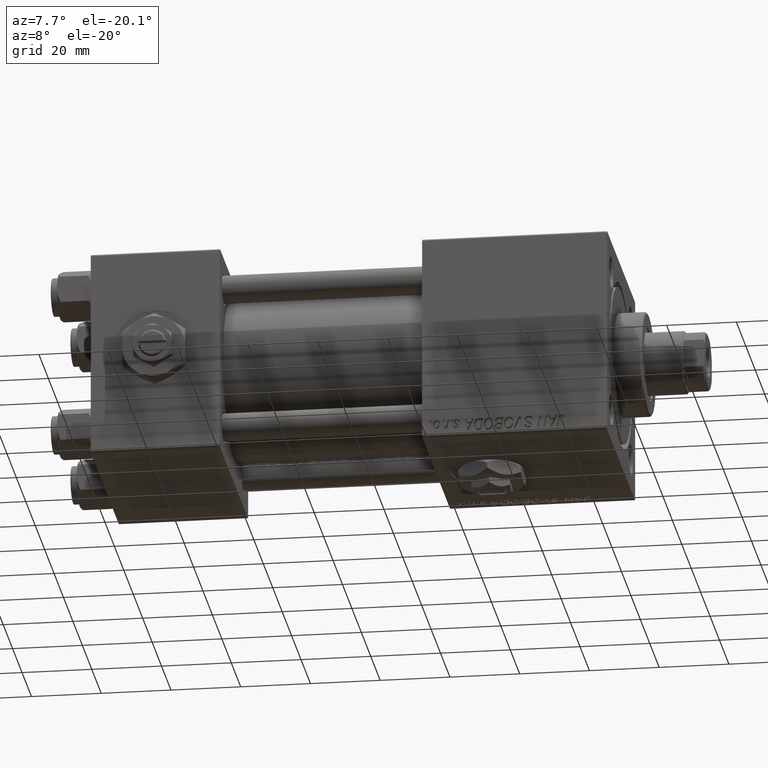
[diagram: clean part render]
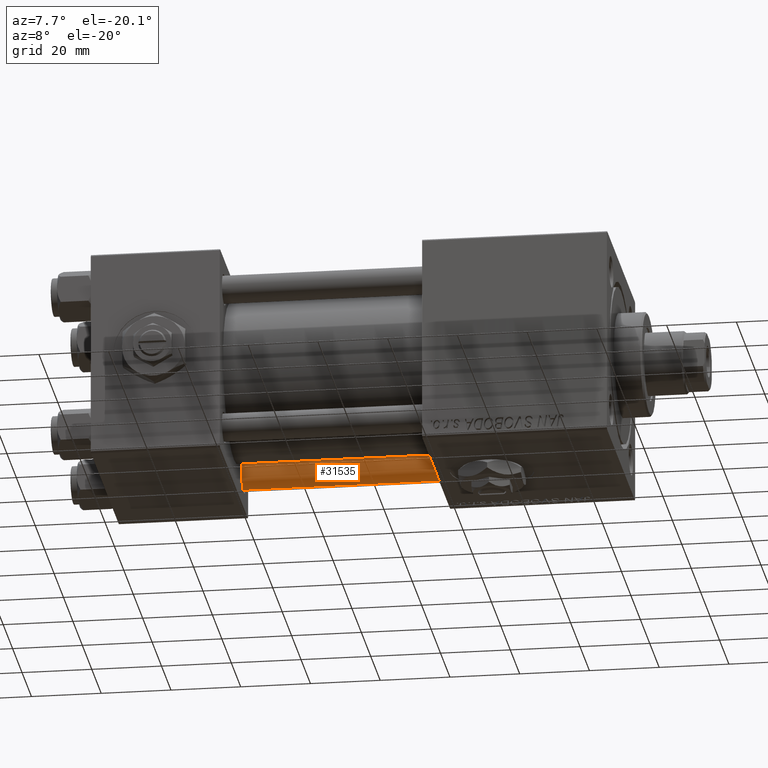
[diagram: same view with one face highlighted and labeled with its STEP entity id]
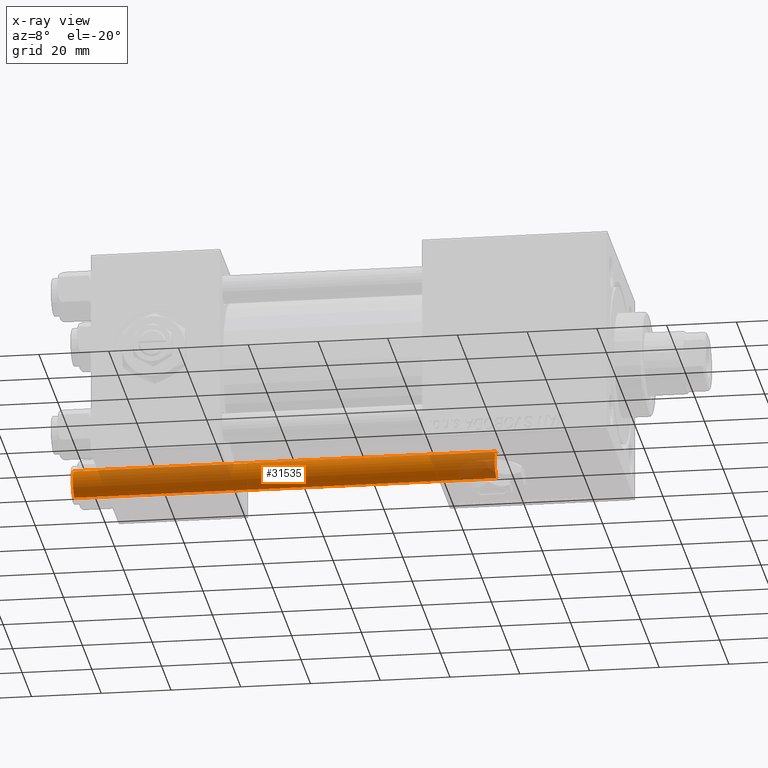
[diagram: x-ray of the same camera — body ghosted, the highlighted face saturated]
A machine part, auxiliary view. The second image highlights one B-rep face of the part: STEP entity #31535.
The next image is the same camera in x-ray: the body ghosted, the highlighted face saturated — about 30% of this face is hidden behind the body in this view.
In plain terms, the highlighted cylindrical surface (edge-blend (fillet) strip) has radius 4 mm, axis along (1, -0, 0).
Its self-contained STEP definition (entity closure, byte-faithful):
#565 = VECTOR ( 'NONE', #48846, 1000.000000000000000 ) ;
#788 = DIRECTION ( 'NONE',  ( 1.000000000000000000, 0.000000000000000000, 0.000000000000000000 ) ) ;
#1296 = LINE ( 'NONE', #44345, #565 ) ;
#3832 = AXIS2_PLACEMENT_3D ( 'NONE', #27839, #24910, #48391 ) ;
#4839 = CYLINDRICAL_SURFACE ( 'NONE', #3832, 4.000000000000000000 ) ;
#6329 = EDGE_CURVE ( 'NONE', #16325, #23032, #8172, .T. ) ;
#8172 = CIRCLE ( 'NONE', #44416, 4.000000000000000000 ) ;
#9447 = ORIENTED_EDGE ( 'NONE', *, *, #6329, .T. ) ;
#11332 = EDGE_CURVE ( 'NONE', #18484, #17122, #26802, .T. ) ;
#13706 = DIRECTION ( 'NONE',  ( -0.000000000000000000, -0.000000000000000000, -1.000000000000000000 ) ) ;
#14529 = ORIENTED_EDGE ( 'NONE', *, *, #11332, .T. ) ;
#16325 = VERTEX_POINT ( 'NONE', #17275 ) ;
#16988 = DIRECTION ( 'NONE',  ( 1.000000000000000000, 0.000000000000000000, 0.000000000000000000 ) ) ;
#17122 = VERTEX_POINT ( 'NONE', #27090 ) ;
#17275 = CARTESIAN_POINT ( 'NONE',  ( 4.000000000000000000, 4.898587196589411843E-16, 121.5000000000000426 ) ) ;
#18484 = VERTEX_POINT ( 'NONE', #46029 ) ;
#20403 = CARTESIAN_POINT ( 'NONE',  ( -4.000000000000000000, 0.000000000000000000, 121.5000000000000426 ) ) ;
#23032 = VERTEX_POINT ( 'NONE', #20403 ) ;
#24910 = DIRECTION ( 'NONE',  ( -0.000000000000000000, -0.000000000000000000, -1.000000000000000000 ) ) ;
#26802 = CIRCLE ( 'NONE', #32696, 4.000000000000000000 ) ;
#27090 = CARTESIAN_POINT ( 'NONE',  ( 4.000000000000000000, 4.898587196589411843E-16, 0.5000000000000559552 ) ) ;
#27839 = CARTESIAN_POINT ( 'NONE',  ( 0.000000000000000000, 0.000000000000000000, 122.0000000000000000 ) ) ;
#28672 = ORIENTED_EDGE ( 'NONE', *, *, #51210, .T. ) ;
#29044 = CARTESIAN_POINT ( 'NONE',  ( 0.000000000000000000, 0.000000000000000000, 121.5000000000000426 ) ) ;
#31535 = ADVANCED_FACE ( 'NONE', ( #37061 ), #4839, .T. ) ;
#32696 = AXIS2_PLACEMENT_3D ( 'NONE', #44955, #33333, #16988 ) ;
#33333 = DIRECTION ( 'NONE',  ( -0.000000000000000000, -0.000000000000000000, 1.000000000000000000 ) ) ;
#35537 = EDGE_CURVE ( 'NONE', #16325, #17122, #1296, .T. ) ;
#37061 = FACE_OUTER_BOUND ( 'NONE', #41139, .T. ) ;
#38022 = ORIENTED_EDGE ( 'NONE', *, *, #35537, .F. ) ;
#41139 = EDGE_LOOP ( 'NONE', ( #38022, #9447, #28672, #14529 ) ) ;
#41161 = CARTESIAN_POINT ( 'NONE',  ( -4.000000000000000000, 0.000000000000000000, 122.0000000000000000 ) ) ;
#44345 = CARTESIAN_POINT ( 'NONE',  ( 4.000000000000000000, 4.898587196589411843E-16, 122.0000000000000000 ) ) ;
#44416 = AXIS2_PLACEMENT_3D ( 'NONE', #29044, #48848, #788 ) ;
#44955 = CARTESIAN_POINT ( 'NONE',  ( 0.000000000000000000, 0.000000000000000000, 0.5000000000000559552 ) ) ;
#46029 = CARTESIAN_POINT ( 'NONE',  ( -4.000000000000000000, 0.000000000000000000, 0.5000000000000559552 ) ) ;
#48391 = DIRECTION ( 'NONE',  ( -1.000000000000000000, 0.000000000000000000, 0.000000000000000000 ) ) ;
#48846 = DIRECTION ( 'NONE',  ( -0.000000000000000000, -0.000000000000000000, -1.000000000000000000 ) ) ;
#48848 = DIRECTION ( 'NONE',  ( 0.000000000000000000, 0.000000000000000000, -1.000000000000000000 ) ) ;
#49609 = LINE ( 'NONE', #41161, #51988 ) ;
#51210 = EDGE_CURVE ( 'NONE', #23032, #18484, #49609, .T. ) ;
#51988 = VECTOR ( 'NONE', #13706, 1000.000000000000000 ) ;